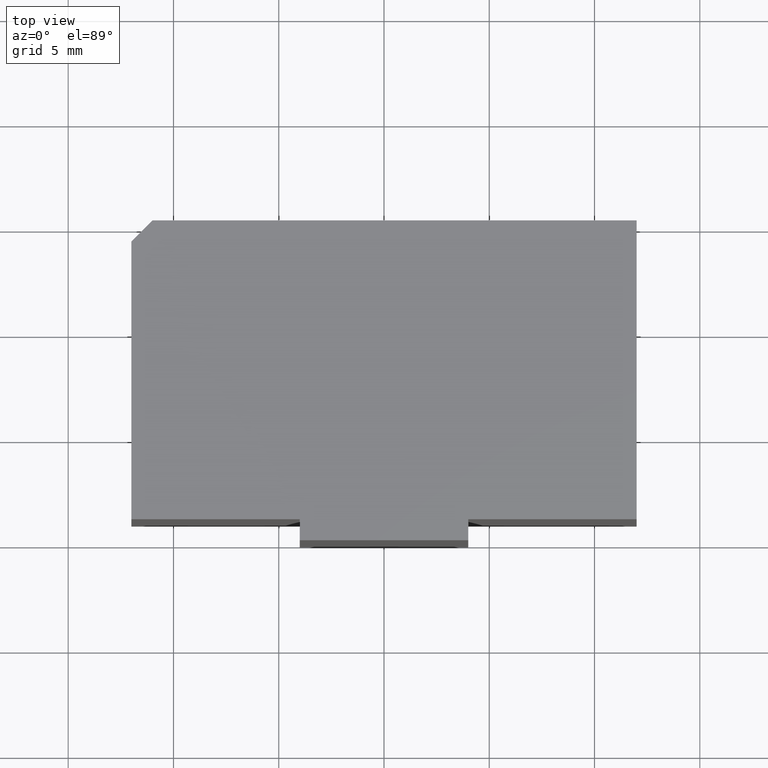
[diagram: clean part render]
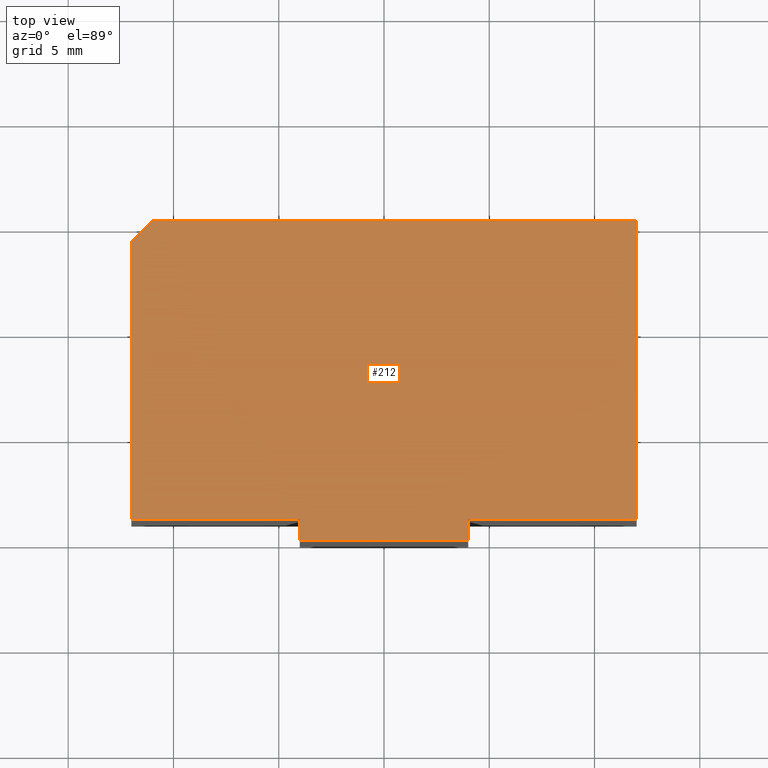
[diagram: same view with one face highlighted and labeled with its STEP entity id]
A machine part, top view. The second image highlights one B-rep face of the part: STEP entity #212.
In plain terms, the highlighted planar face has unit normal (0, 0, 1).
Its self-contained STEP definition (entity closure, byte-faithful):
#26=FACE_OUTER_BOUND('',#37,.T.);
#37=EDGE_LOOP('',(#182,#183,#184,#185,#186,#187,#188,#189,#190));
#47=LINE('',#321,#74);
#50=LINE('',#326,#77);
#52=LINE('',#330,#79);
#54=LINE('',#334,#81);
#56=LINE('',#338,#83);
#58=LINE('',#342,#85);
#60=LINE('',#346,#87);
#62=LINE('',#350,#89);
#64=LINE('',#353,#91);
#74=VECTOR('',#262,10.);
#77=VECTOR('',#267,10.);
#79=VECTOR('',#271,10.);
#81=VECTOR('',#275,10.);
#83=VECTOR('',#279,10.);
#85=VECTOR('',#283,10.);
#87=VECTOR('',#287,10.);
#89=VECTOR('',#291,10.);
#91=VECTOR('',#295,10.);
#101=VERTEX_POINT('',#319);
#102=VERTEX_POINT('',#320);
#103=VERTEX_POINT('',#325);
#104=VERTEX_POINT('',#329);
#105=VERTEX_POINT('',#333);
#106=VERTEX_POINT('',#337);
#107=VERTEX_POINT('',#341);
#108=VERTEX_POINT('',#345);
#109=VERTEX_POINT('',#349);
#119=EDGE_CURVE('',#101,#102,#47,.T.);
#122=EDGE_CURVE('',#102,#103,#50,.T.);
#124=EDGE_CURVE('',#103,#104,#52,.T.);
#126=EDGE_CURVE('',#104,#105,#54,.T.);
#128=EDGE_CURVE('',#105,#106,#56,.T.);
#130=EDGE_CURVE('',#106,#107,#58,.T.);
#132=EDGE_CURVE('',#107,#108,#60,.T.);
#134=EDGE_CURVE('',#108,#109,#62,.T.);
#136=EDGE_CURVE('',#109,#101,#64,.T.);
#182=ORIENTED_EDGE('',*,*,#119,.F.);
#183=ORIENTED_EDGE('',*,*,#136,.F.);
#184=ORIENTED_EDGE('',*,*,#134,.F.);
#185=ORIENTED_EDGE('',*,*,#132,.F.);
#186=ORIENTED_EDGE('',*,*,#130,.F.);
#187=ORIENTED_EDGE('',*,*,#128,.F.);
#188=ORIENTED_EDGE('',*,*,#126,.F.);
#189=ORIENTED_EDGE('',*,*,#124,.F.);
#190=ORIENTED_EDGE('',*,*,#122,.F.);
#201=PLANE('',#246);
#212=ADVANCED_FACE('',(#26),#201,.T.);
#246=AXIS2_PLACEMENT_3D('',#354,#296,#297);
#262=DIRECTION('',(0.,-1.,0.));
#267=DIRECTION('',(-1.,0.,0.));
#271=DIRECTION('',(0.,1.,0.));
#275=DIRECTION('',(-1.,-6.93889390390723E-17,0.));
#279=DIRECTION('',(0.,1.,0.));
#283=DIRECTION('',(0.707106781186548,0.707106781186548,0.));
#287=DIRECTION('',(1.,-9.65411325761006E-17,0.));
#291=DIRECTION('',(0.,-1.,0.));
#295=DIRECTION('',(-1.,6.93889390390723E-17,0.));
#296=DIRECTION('center_axis',(0.,0.,1.));
#297=DIRECTION('ref_axis',(1.,0.,0.));
#319=CARTESIAN_POINT('',(4.,1.,10.));
#320=CARTESIAN_POINT('',(4.,5.48172618408671E-15,10.));
#321=CARTESIAN_POINT('',(4.,1.,10.));
#325=CARTESIAN_POINT('',(-4.,5.48172618408671E-15,10.));
#326=CARTESIAN_POINT('',(4.,5.48172618408671E-15,10.));
#329=CARTESIAN_POINT('',(-4.,1.,10.));
#330=CARTESIAN_POINT('',(-4.,5.48172618408671E-15,10.));
#333=CARTESIAN_POINT('',(-12.,1.,10.));
#334=CARTESIAN_POINT('',(-4.,1.,10.));
#337=CARTESIAN_POINT('',(-12.,14.2,10.));
#338=CARTESIAN_POINT('',(-12.,1.,10.));
#341=CARTESIAN_POINT('',(-11.,15.2,10.));
#342=CARTESIAN_POINT('',(-12.,14.2,10.));
#345=CARTESIAN_POINT('',(12.,15.2,10.));
#346=CARTESIAN_POINT('',(-11.,15.2,10.));
#349=CARTESIAN_POINT('',(12.,1.,10.));
#350=CARTESIAN_POINT('',(12.,15.2,10.));
#353=CARTESIAN_POINT('',(12.,1.,10.));
#354=CARTESIAN_POINT('Origin',(0.0929977147029678,7.74574350589252,10.));